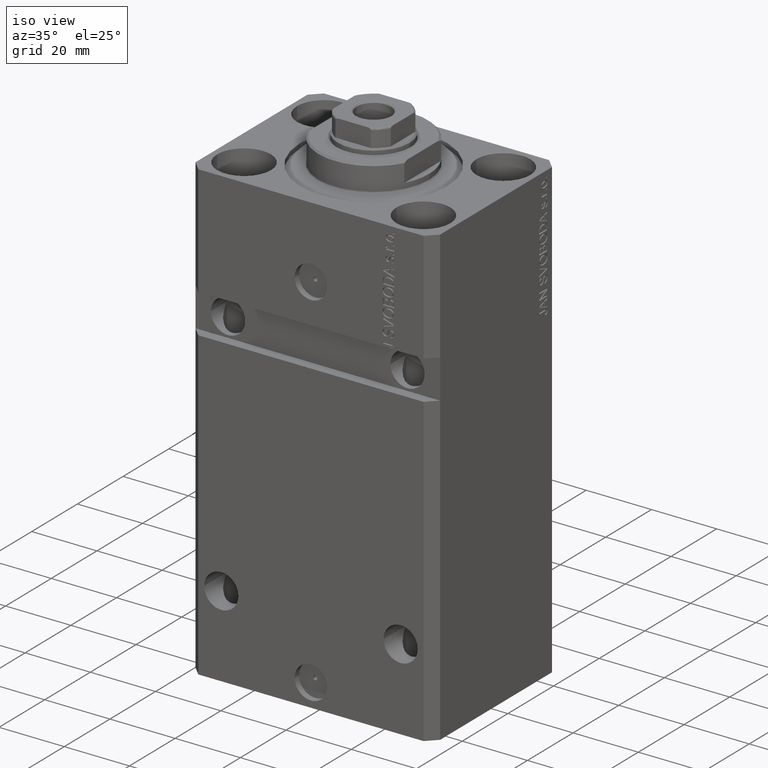
[diagram: clean part render]
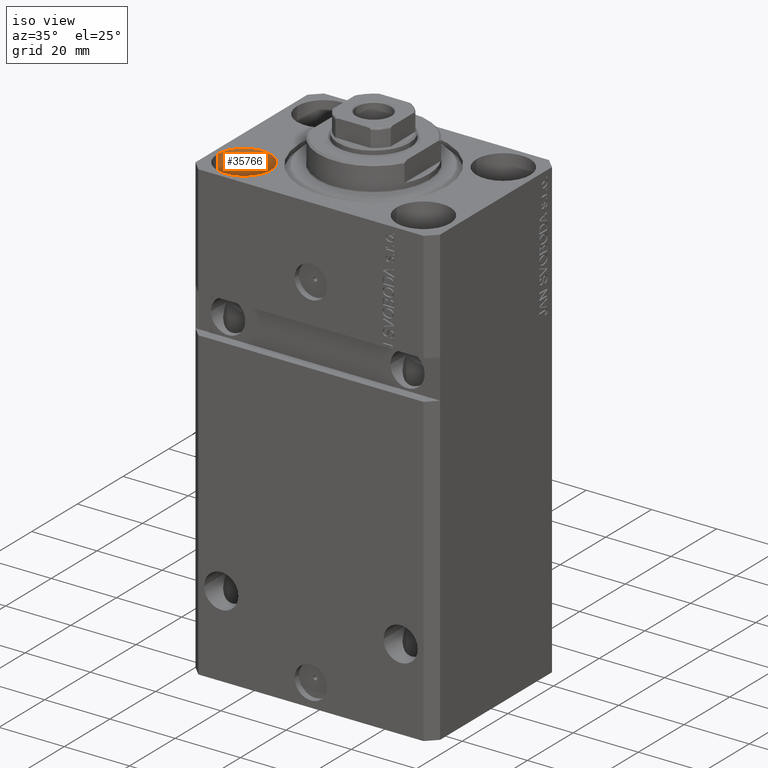
[diagram: same view with one face highlighted and labeled with its STEP entity id]
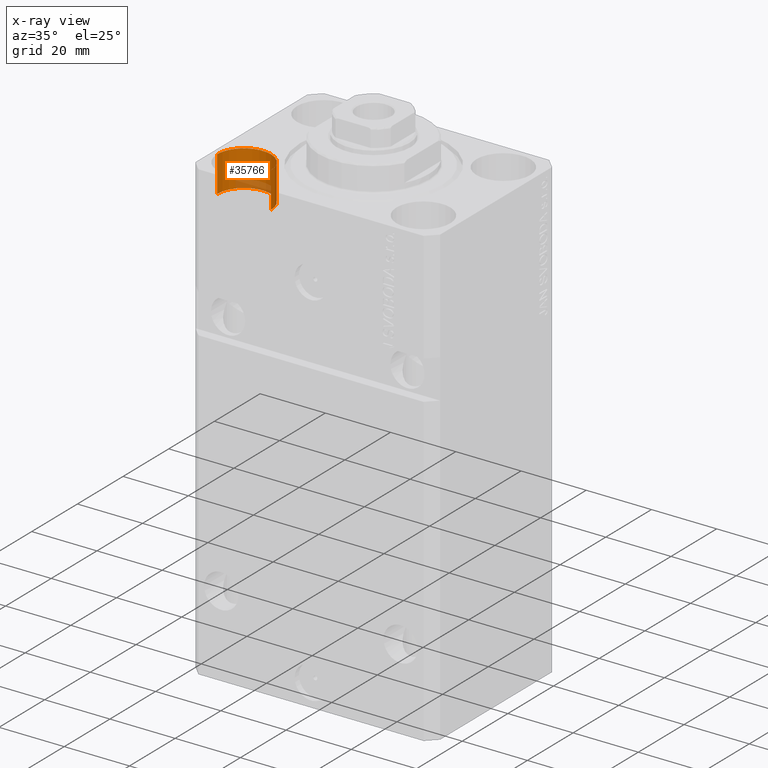
[diagram: x-ray of the same camera — body ghosted, the highlighted face saturated]
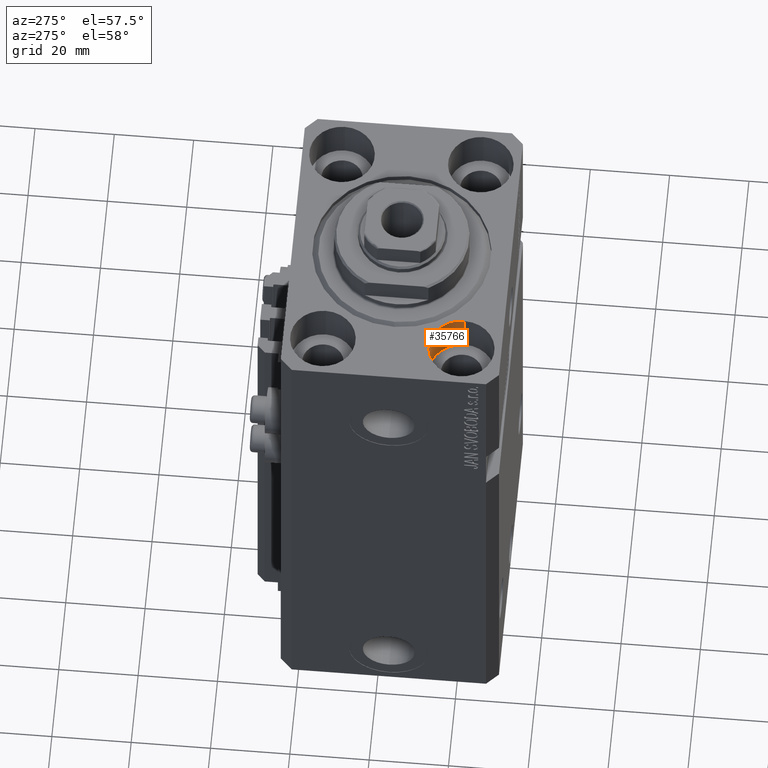
[diagram: same view with one face highlighted and labeled with its STEP entity id]
A machine part, iso view. The second image highlights one B-rep face of the part: STEP entity #35766.
The next image is the same camera in x-ray: the body ghosted, the highlighted face saturated — about 12% of this face is hidden behind the body in this view.
A second angle (auxiliary view) of the same face is appended — the face is thin or edge-on in the first view.
In plain terms, the highlighted cylindrical surface (edge-blend (fillet) strip) has radius 8.25 mm, axis along (0, 0, 1).
Its self-contained STEP definition (entity closure, byte-faithful):
#560 = CARTESIAN_POINT ( 'NONE',  ( -19.25000000000000355, -17.50000000000000000, -11.00000000000000000 ) ) ;
#620 = EDGE_CURVE ( 'NONE', #43230, #21289, #22812, .T. ) ;
#2402 = EDGE_CURVE ( 'NONE', #30845, #28131, #33579, .T. ) ;
#3010 = ORIENTED_EDGE ( 'NONE', *, *, #14475, .T. ) ;
#5266 = AXIS2_PLACEMENT_3D ( 'NONE', #29411, #7370, #36583 ) ;
#6274 = CARTESIAN_POINT ( 'NONE',  ( -27.50000000000000355, -17.50000000000000000, -11.00000000000000000 ) ) ;
#6852 = AXIS2_PLACEMENT_3D ( 'NONE', #24780, #24070, #27900 ) ;
#7370 = DIRECTION ( 'NONE',  ( 0.000000000000000000, 0.000000000000000000, 1.000000000000000000 ) ) ;
#9470 = CYLINDRICAL_SURFACE ( 'NONE', #6852, 8.250000000000000000 ) ;
#12080 = ORIENTED_EDGE ( 'NONE', *, *, #30041, .F. ) ;
#12304 = LINE ( 'NONE', #19721, #24233 ) ;
#13911 = VECTOR ( 'NONE', #23872, 1000.000000000000000 ) ;
#14475 = EDGE_CURVE ( 'NONE', #43230, #30845, #27457, .T. ) ;
#17358 = FACE_OUTER_BOUND ( 'NONE', #24833, .T. ) ;
#19196 = ORIENTED_EDGE ( 'NONE', *, *, #620, .F. ) ;
#19721 = CARTESIAN_POINT ( 'NONE',  ( -35.75000000000000711, -17.50000000000000000, -11.00000000000000000 ) ) ;
#19958 = DIRECTION ( 'NONE',  ( -0.000000000000000000, -0.000000000000000000, 1.000000000000000000 ) ) ;
#20262 = CARTESIAN_POINT ( 'NONE',  ( -19.25000000000000355, -17.50000000000000000, 0.000000000000000000 ) ) ;
#21289 = VERTEX_POINT ( 'NONE', #25058 ) ;
#22812 = CIRCLE ( 'NONE', #43423, 8.250000000000000000 ) ;
#23872 = DIRECTION ( 'NONE',  ( -0.000000000000000000, -0.000000000000000000, 1.000000000000000000 ) ) ;
#24070 = DIRECTION ( 'NONE',  ( -0.000000000000000000, -0.000000000000000000, 1.000000000000000000 ) ) ;
#24233 = VECTOR ( 'NONE', #19958, 1000.000000000000000 ) ;
#24780 = CARTESIAN_POINT ( 'NONE',  ( -27.50000000000000355, -17.50000000000000000, -11.00000000000000000 ) ) ;
#24833 = EDGE_LOOP ( 'NONE', ( #12080, #19196, #3010, #44481 ) ) ;
#25058 = CARTESIAN_POINT ( 'NONE',  ( -35.75000000000000711, -17.50000000000000000, -11.00000000000000000 ) ) ;
#25138 = CARTESIAN_POINT ( 'NONE',  ( -35.75000000000000711, -17.50000000000000000, 0.000000000000000000 ) ) ;
#27457 = LINE ( 'NONE', #27936, #13911 ) ;
#27900 = DIRECTION ( 'NONE',  ( 1.000000000000000000, 0.000000000000000000, 0.000000000000000000 ) ) ;
#27936 = CARTESIAN_POINT ( 'NONE',  ( -19.25000000000000355, -17.50000000000000000, -11.00000000000000000 ) ) ;
#28131 = VERTEX_POINT ( 'NONE', #25138 ) ;
#29411 = CARTESIAN_POINT ( 'NONE',  ( -27.50000000000000355, -17.50000000000000000, 0.000000000000000000 ) ) ;
#30041 = EDGE_CURVE ( 'NONE', #21289, #28131, #12304, .T. ) ;
#30845 = VERTEX_POINT ( 'NONE', #20262 ) ;
#31675 = DIRECTION ( 'NONE',  ( 0.000000000000000000, 0.000000000000000000, 1.000000000000000000 ) ) ;
#33579 = CIRCLE ( 'NONE', #5266, 8.250000000000000000 ) ;
#35766 = ADVANCED_FACE ( 'NONE', ( #17358 ), #9470, .F. ) ;
#36583 = DIRECTION ( 'NONE',  ( 1.000000000000000000, 0.000000000000000000, 0.000000000000000000 ) ) ;
#43230 = VERTEX_POINT ( 'NONE', #560 ) ;
#43423 = AXIS2_PLACEMENT_3D ( 'NONE', #6274, #31675, #46728 ) ;
#44481 = ORIENTED_EDGE ( 'NONE', *, *, #2402, .T. ) ;
#46728 = DIRECTION ( 'NONE',  ( 1.000000000000000000, 0.000000000000000000, 0.000000000000000000 ) ) ;